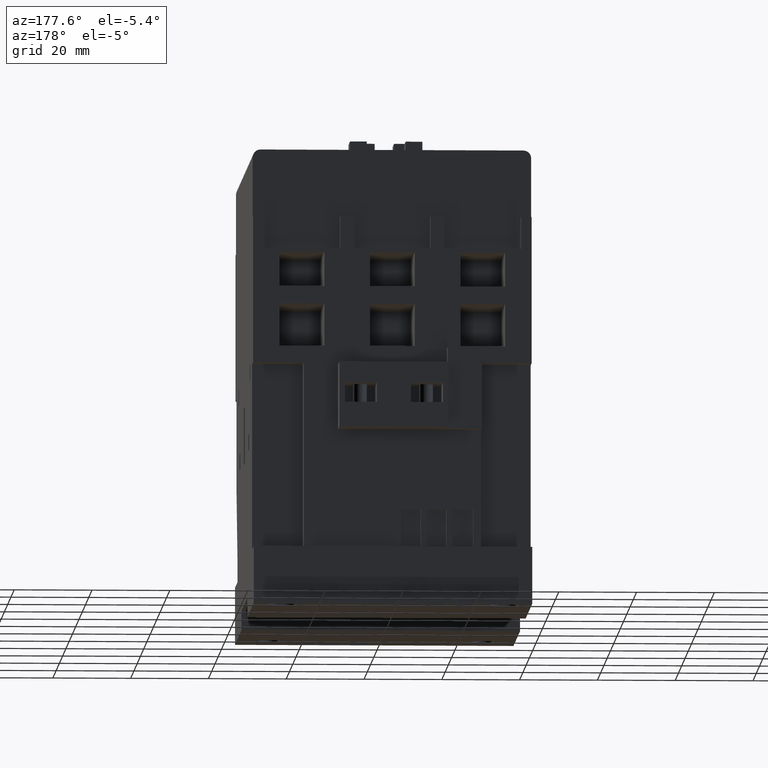
[diagram: clean part render]
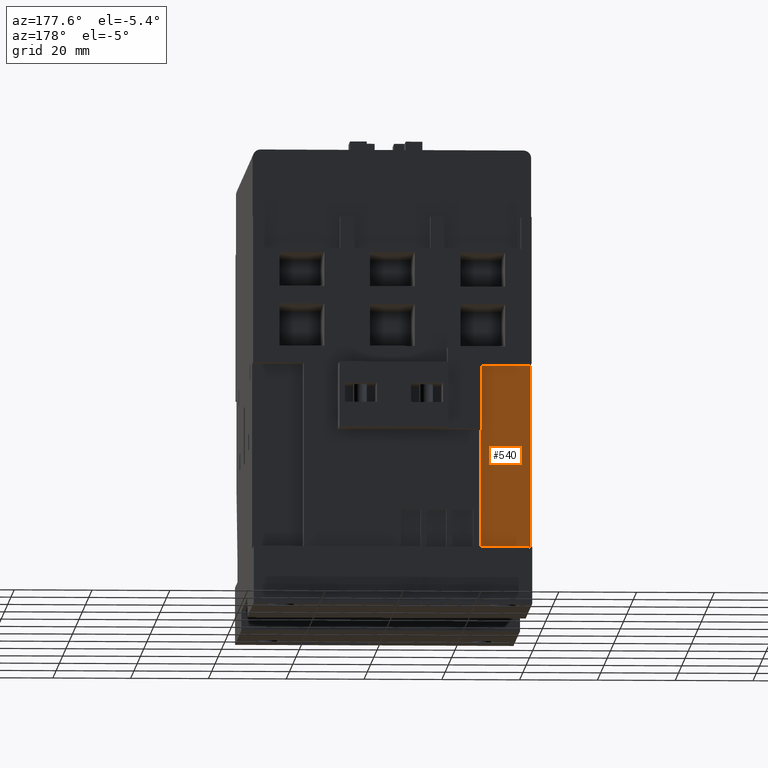
[diagram: same view with one face highlighted and labeled with its STEP entity id]
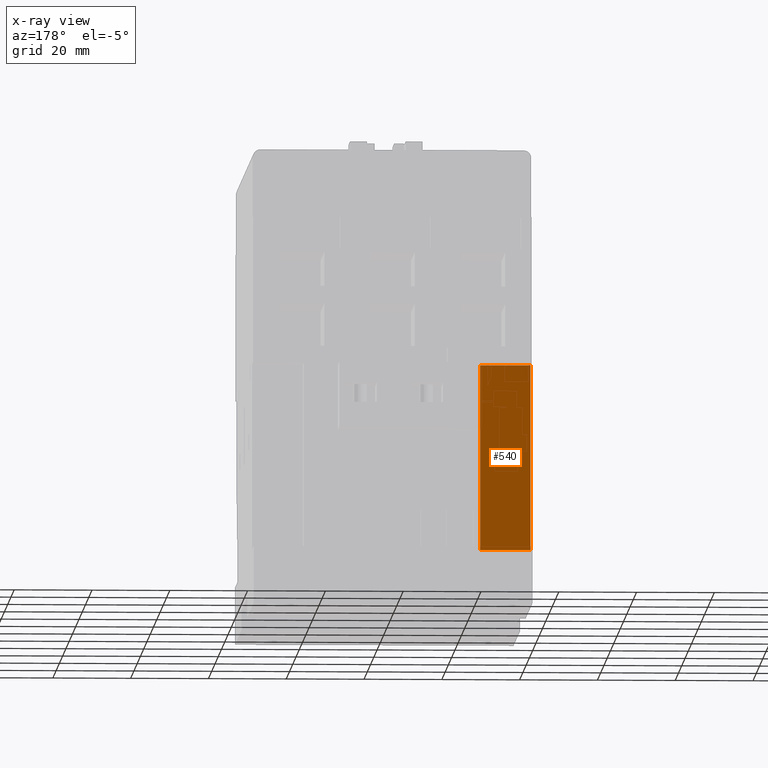
[diagram: x-ray of the same camera — body ghosted, the highlighted face saturated]
A machine part, auxiliary view. The second image highlights one B-rep face of the part: STEP entity #540.
The next image is the same camera in x-ray: the body ghosted, the highlighted face saturated — about 0% of this face is hidden behind the body in this view.
In plain terms, the highlighted planar face has unit normal (-0, 1, -0).
Its self-contained STEP definition (entity closure, byte-faithful):
#540=ADVANCED_FACE('',(#1217),#895,.T.);
#895=PLANE('',#7433);
#1217=FACE_OUTER_BOUND('',#1659,.T.);
#1659=EDGE_LOOP('',(#3232,#3233,#3234,#3235));
#3232=ORIENTED_EDGE('',*,*,#4529,.T.);
#3233=ORIENTED_EDGE('',*,*,#4445,.T.);
#3234=ORIENTED_EDGE('',*,*,#5158,.T.);
#3235=ORIENTED_EDGE('',*,*,#5161,.T.);
#3785=VERTEX_POINT('',#9499);
#3786=VERTEX_POINT('',#9501);
#3868=VERTEX_POINT('',#9669);
#4287=VERTEX_POINT('',#10954);
#4445=EDGE_CURVE('',#3786,#3785,#5402,.T.);
#4529=EDGE_CURVE('',#3868,#3786,#5484,.T.);
#5158=EDGE_CURVE('',#3785,#4287,#6063,.T.);
#5161=EDGE_CURVE('',#4287,#3868,#6066,.T.);
#5402=LINE('',#9500,#6307);
#5484=LINE('',#9668,#6389);
#6063=LINE('',#10955,#6968);
#6066=LINE('',#10960,#6971);
#6307=VECTOR('',#7674,1.);
#6389=VECTOR('',#7764,1.);
#6968=VECTOR('',#8919,1.);
#6971=VECTOR('',#8924,1.);
#7433=AXIS2_PLACEMENT_3D('',#10962,#8927,#8928);
#7674=DIRECTION('',(0.,4.36408421629385E-016,1.));
#7764=DIRECTION('',(-1.,-4.80384962578185E-015,0.));
#8919=DIRECTION('',(1.,0.,-5.33761069531325E-016));
#8924=DIRECTION('',(-2.18204210814693E-016,0.,-1.));
#8927=DIRECTION('',(-4.80384962578185E-015,1.,-4.36408421629385E-016));
#8928=DIRECTION('',(-1.,-4.8017145815038E-015,0.));
#9499=CARTESIAN_POINT('',(-35.8000000000002,47.8999999999998,57.4000000000094));
#9500=CARTESIAN_POINT('',(-35.8000000000002,47.8999999999998,9.70000000000934));
#9501=CARTESIAN_POINT('',(-35.8000000000002,47.8999999999998,9.70000000000934));
#9668=CARTESIAN_POINT('',(-22.8,47.8999999999999,9.70000000000934));
#9669=CARTESIAN_POINT('',(-22.8,47.8999999999999,9.70000000000934));
#10954=CARTESIAN_POINT('',(-22.8,47.9,57.4000000000094));
#10955=CARTESIAN_POINT('',(-35.8,47.9,57.4000000000094));
#10960=CARTESIAN_POINT('',(-22.8,47.9,57.4000000000094));
#10962=CARTESIAN_POINT('',(-35.8000000000002,47.8999999999998,9.70000000000934));